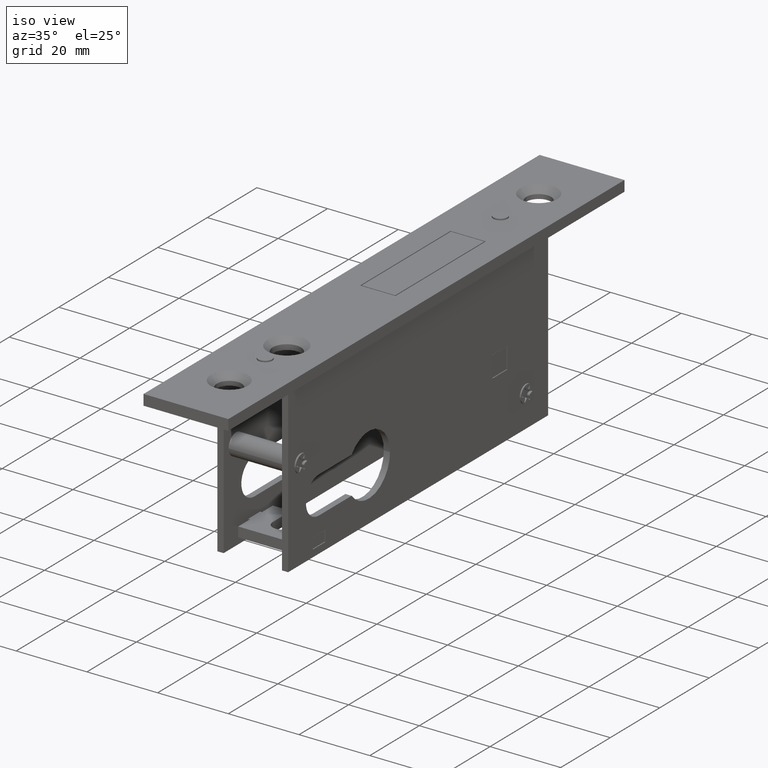
[diagram: clean part render]
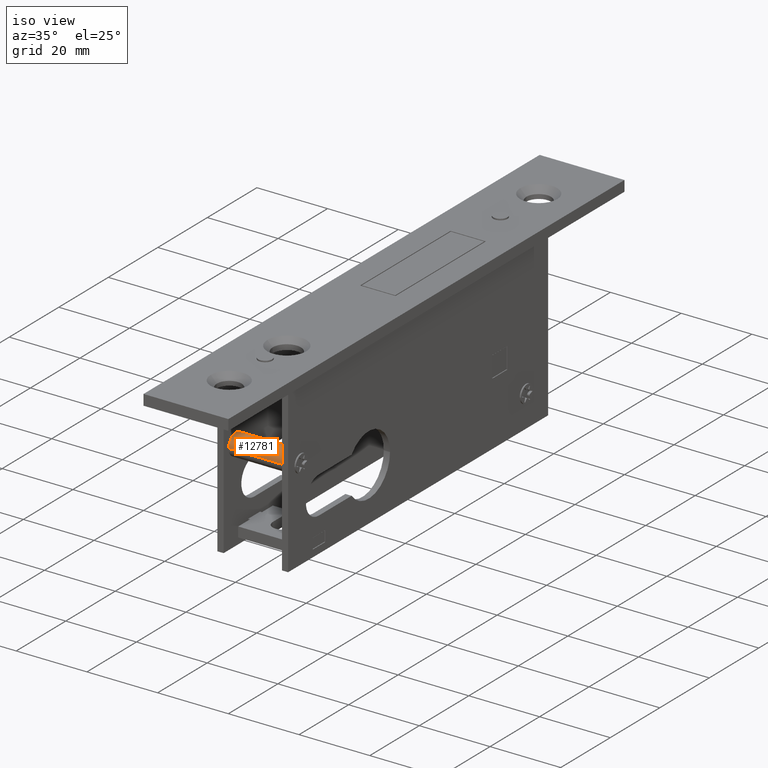
[diagram: same view with one face highlighted and labeled with its STEP entity id]
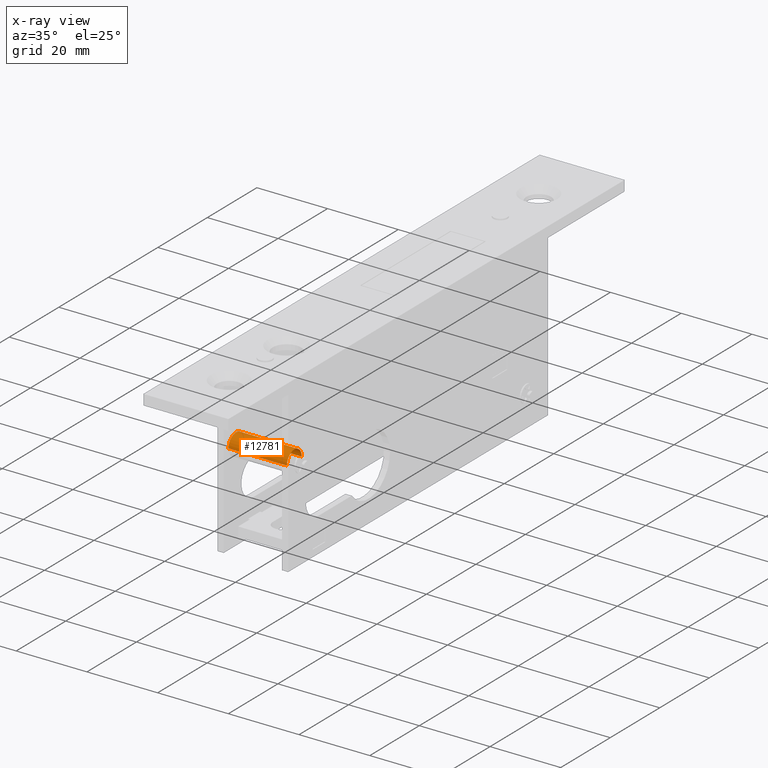
[diagram: x-ray of the same camera — body ghosted, the highlighted face saturated]
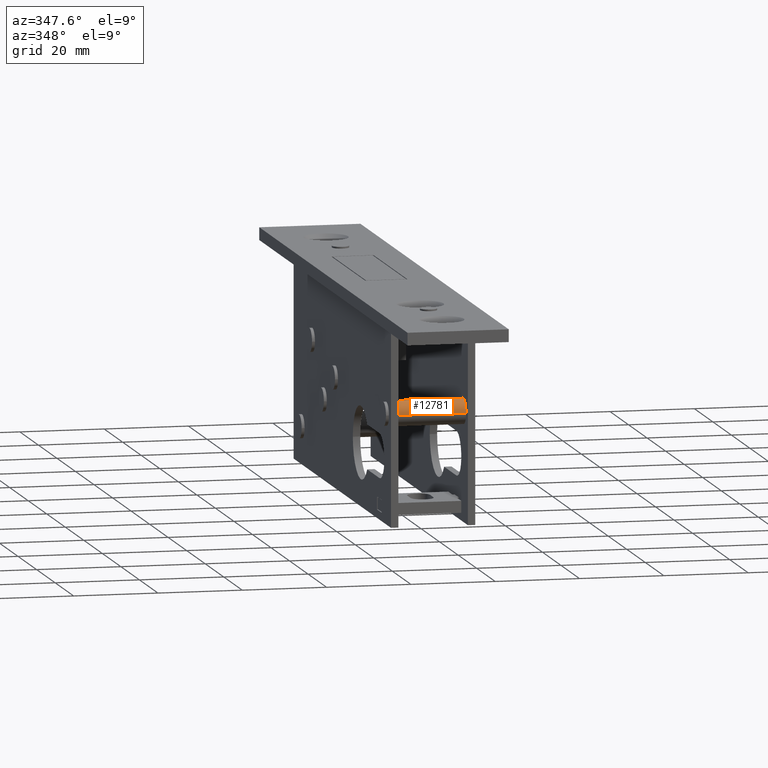
[diagram: same view with one face highlighted and labeled with its STEP entity id]
A machine part, iso view. The second image highlights one B-rep face of the part: STEP entity #12781.
The next image is the same camera in x-ray: the body ghosted, the highlighted face saturated — about 0% of this face is hidden behind the body in this view.
A second angle (auxiliary view) of the same face is appended — the face is thin or edge-on in the first view.
In plain terms, the highlighted cylindrical surface (edge-blend (fillet) strip) has radius 3 mm, axis along (1, -0, -0).
Its self-contained STEP definition (entity closure, byte-faithful):
#307 = DIRECTION ( 'NONE',  ( 0.000000000000000000, -1.000000000000000000, 0.000000000000000000 ) ) ;
#347 = CARTESIAN_POINT ( 'NONE',  ( -12.00199999999998468, -48.00000000000001421, -21.00000000000000000 ) ) ;
#491 = CARTESIAN_POINT ( 'NONE',  ( -8.250000000000005329, -45.00000000000001421, -21.00000000000000000 ) ) ;
#725 = LINE ( 'NONE', #8445, #14753 ) ;
#903 = AXIS2_PLACEMENT_3D ( 'NONE', #5619, #8427, #307 ) ;
#1130 = CIRCLE ( 'NONE', #903, 3.000000000000002665 ) ;
#1134 = VECTOR ( 'NONE', #7392, 1000.000000000000000 ) ;
#1794 = EDGE_CURVE ( 'NONE', #9323, #4167, #725, .T. ) ;
#2127 = EDGE_CURVE ( 'NONE', #15229, #16590, #16443, .T. ) ;
#2614 = EDGE_CURVE ( 'NONE', #4167, #16590, #10474, .T. ) ;
#3722 = ORIENTED_EDGE ( 'NONE', *, *, #2127, .F. ) ;
#3873 = CARTESIAN_POINT ( 'NONE',  ( 8.249999999999996447, -45.00000000000001421, -21.00000000000000000 ) ) ;
#4167 = VERTEX_POINT ( 'NONE', #10307 ) ;
#4838 = CARTESIAN_POINT ( 'NONE',  ( -12.00199999999998468, -45.00000000000001421, -21.00000000000000000 ) ) ;
#4872 = ORIENTED_EDGE ( 'NONE', *, *, #10911, .T. ) ;
#5477 = ORIENTED_EDGE ( 'NONE', *, *, #1794, .T. ) ;
#5619 = CARTESIAN_POINT ( 'NONE',  ( -8.250000000000005329, -48.00000000000001421, -21.00000000000000000 ) ) ;
#6178 = CARTESIAN_POINT ( 'NONE',  ( -8.250000000000005329, -51.00000000000001421, -21.00000000000000000 ) ) ;
#7331 = DIRECTION ( 'NONE',  ( 0.000000000000000000, 1.000000000000000000, 0.000000000000000000 ) ) ;
#7392 = DIRECTION ( 'NONE',  ( 1.000000000000000000, -1.214306433183764966E-16, -0.000000000000000000 ) ) ;
#8427 = DIRECTION ( 'NONE',  ( 1.000000000000000000, -1.156482317317871478E-16, -0.000000000000000000 ) ) ;
#8441 = CARTESIAN_POINT ( 'NONE',  ( 8.249999999999996447, -48.00000000000001421, -21.00000000000000000 ) ) ;
#8445 = CARTESIAN_POINT ( 'NONE',  ( -12.00199999999998468, -51.00000000000001421, -21.00000000000000000 ) ) ;
#8829 = DIRECTION ( 'NONE',  ( 1.000000000000000000, -1.214306433183764966E-16, -0.000000000000000000 ) ) ;
#9323 = VERTEX_POINT ( 'NONE', #6178 ) ;
#9809 = CYLINDRICAL_SURFACE ( 'NONE', #11394, 3.000000000000002665 ) ;
#9827 = DIRECTION ( 'NONE',  ( -1.000000000000000000, 1.156482317317871478E-16, -0.000000000000000000 ) ) ;
#9945 = DIRECTION ( 'NONE',  ( 0.000000000000000000, 1.000000000000000000, 0.000000000000000000 ) ) ;
#10307 = CARTESIAN_POINT ( 'NONE',  ( 8.249999999999996447, -51.00000000000001421, -21.00000000000000000 ) ) ;
#10331 = EDGE_LOOP ( 'NONE', ( #4872, #5477, #11908, #3722 ) ) ;
#10474 = CIRCLE ( 'NONE', #15372, 3.000000000000002665 ) ;
#10911 = EDGE_CURVE ( 'NONE', #15229, #9323, #1130, .T. ) ;
#11394 = AXIS2_PLACEMENT_3D ( 'NONE', #347, #8829, #7331 ) ;
#11908 = ORIENTED_EDGE ( 'NONE', *, *, #2614, .T. ) ;
#12781 = ADVANCED_FACE ( 'NONE', ( #15556 ), #9809, .T. ) ;
#14753 = VECTOR ( 'NONE', #16653, 1000.000000000000000 ) ;
#15229 = VERTEX_POINT ( 'NONE', #491 ) ;
#15372 = AXIS2_PLACEMENT_3D ( 'NONE', #8441, #9827, #9945 ) ;
#15556 = FACE_OUTER_BOUND ( 'NONE', #10331, .T. ) ;
#16443 = LINE ( 'NONE', #4838, #1134 ) ;
#16590 = VERTEX_POINT ( 'NONE', #3873 ) ;
#16653 = DIRECTION ( 'NONE',  ( 1.000000000000000000, -1.214306433183764966E-16, -0.000000000000000000 ) ) ;